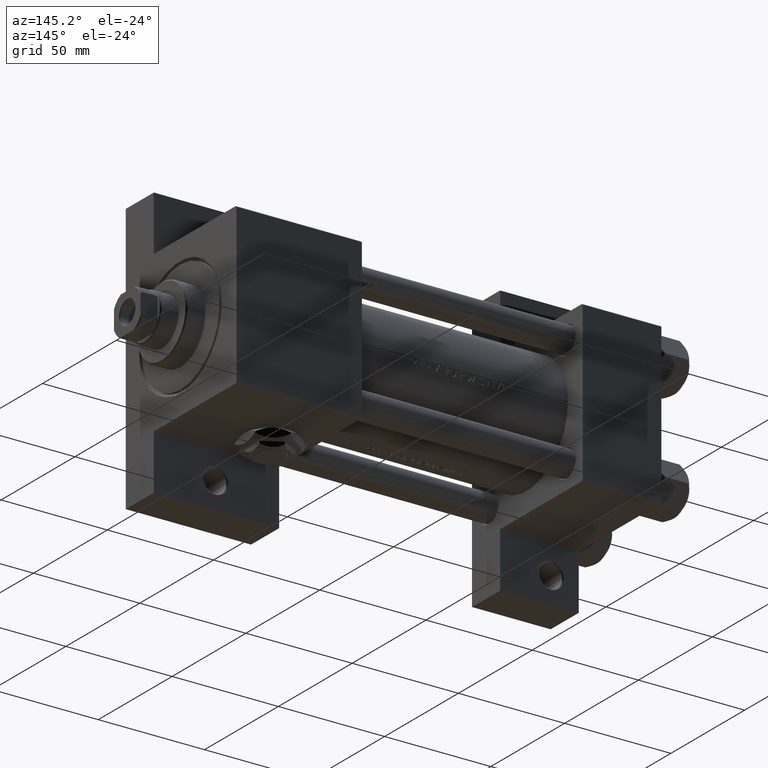
[diagram: clean part render]
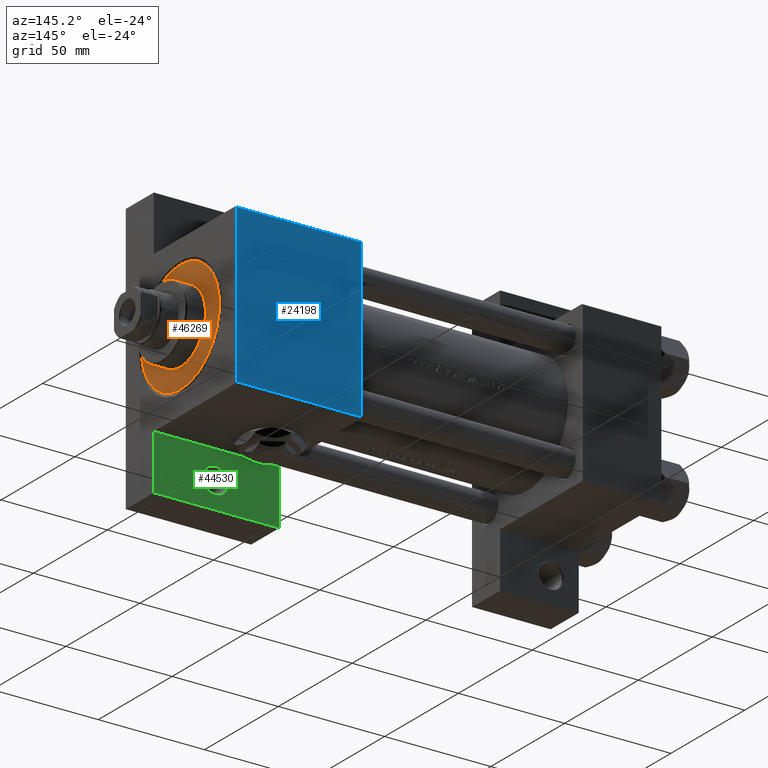
[diagram: same view with three faces highlighted in distinct colors, each labeled with its STEP entity id]
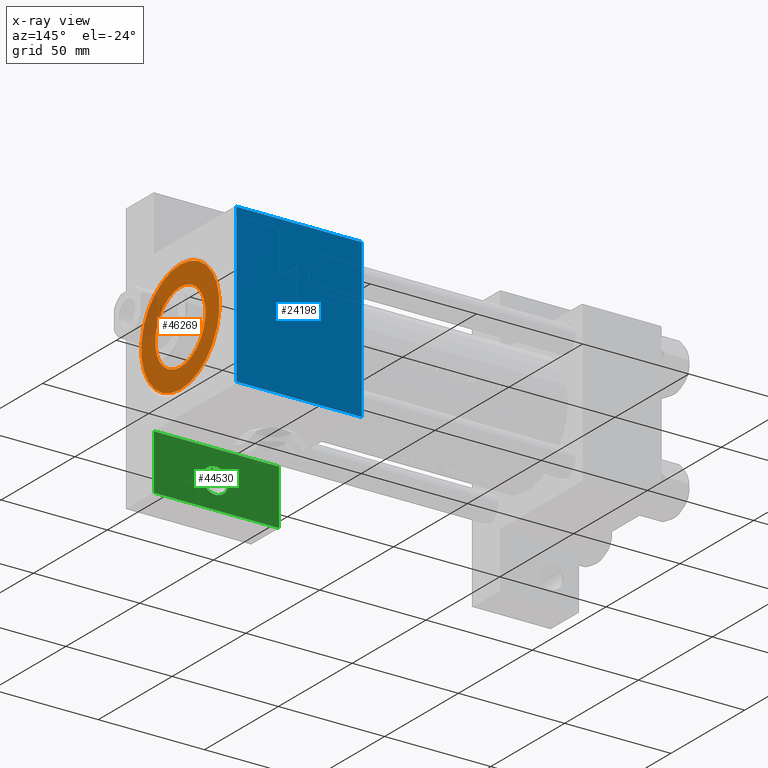
[diagram: x-ray of the same camera — body ghosted, the three highlighted faces saturated]
A machine part, auxiliary view with three faces highlighted in distinct colors.
The next image is the same camera in x-ray (body ghosted, the three faces saturated) — at least one of them is partly hidden behind the body in this view.
Their STEP definitions:

[orange] entity #46269 — the highlighted planar face has unit normal (1, 0, 0).
#2317 = CARTESIAN_POINT ( 'NONE',  ( -26.50000000000000355, 0.000000000000000000, 28.69999999999999929 ) ) ;
#2526 = ORIENTED_EDGE ( 'NONE', *, *, #10223, .T. ) ;
#3452 = AXIS2_PLACEMENT_3D ( 'NONE', #15663, #23867, #27587 ) ;
#4471 = PLANE ( 'NONE',  #11733 ) ;
#4754 = VERTEX_POINT ( 'NONE', #22784 ) ;
#5736 = CARTESIAN_POINT ( 'NONE',  ( 0.000000000000000000, 0.000000000000000000, 28.69999999999999929 ) ) ;
#5846 = CARTESIAN_POINT ( 'NONE',  ( 0.000000000000000000, 0.000000000000000000, 28.69999999999999929 ) ) ;
#7546 = CARTESIAN_POINT ( 'NONE',  ( 26.50000000000000355, 3.245314017740486554E-15, 28.69999999999999929 ) ) ;
#8373 = EDGE_CURVE ( 'NONE', #26002, #29425, #14264, .T. ) ;
#8695 = DIRECTION ( 'NONE',  ( 0.000000000000000000, 0.000000000000000000, 1.000000000000000000 ) ) ;
#9774 = EDGE_LOOP ( 'NONE', ( #12575, #37375 ) ) ;
#10223 = EDGE_CURVE ( 'NONE', #29425, #26002, #28536, .T. ) ;
#11733 = AXIS2_PLACEMENT_3D ( 'NONE', #23872, #8695, #31835 ) ;
#11836 = AXIS2_PLACEMENT_3D ( 'NONE', #5736, #44298, #25375 ) ;
#12138 = DIRECTION ( 'NONE',  ( 0.000000000000000000, 0.000000000000000000, 1.000000000000000000 ) ) ;
#12575 = ORIENTED_EDGE ( 'NONE', *, *, #22007, .F. ) ;
#13151 = FACE_OUTER_BOUND ( 'NONE', #44524, .T. ) ;
#13792 = CIRCLE ( 'NONE', #3452, 17.00000000000000000 ) ;
#13798 = DIRECTION ( 'NONE',  ( 0.000000000000000000, 0.000000000000000000, 1.000000000000000000 ) ) ;
#14264 = CIRCLE ( 'NONE', #26967, 26.50000000000000355 ) ;
#15663 = CARTESIAN_POINT ( 'NONE',  ( 0.000000000000000000, 0.000000000000000000, 28.69999999999999929 ) ) ;
#17854 = CARTESIAN_POINT ( 'NONE',  ( 17.00000000000000000, 2.081899558550500280E-15, 28.69999999999999929 ) ) ;
#18341 = ORIENTED_EDGE ( 'NONE', *, *, #8373, .T. ) ;
#21067 = CIRCLE ( 'NONE', #48880, 17.00000000000000000 ) ;
#22007 = EDGE_CURVE ( 'NONE', #4754, #42181, #13792, .T. ) ;
#22614 = DIRECTION ( 'NONE',  ( 1.000000000000000000, 0.000000000000000000, 0.000000000000000000 ) ) ;
#22784 = CARTESIAN_POINT ( 'NONE',  ( -17.00000000000000000, 0.000000000000000000, 28.69999999999999929 ) ) ;
#23867 = DIRECTION ( 'NONE',  ( 0.000000000000000000, 0.000000000000000000, 1.000000000000000000 ) ) ;
#23872 = CARTESIAN_POINT ( 'NONE',  ( 0.000000000000000000, 0.000000000000000000, 28.69999999999999929 ) ) ;
#24343 = EDGE_CURVE ( 'NONE', #42181, #4754, #21067, .T. ) ;
#25375 = DIRECTION ( 'NONE',  ( 1.000000000000000000, 0.000000000000000000, 0.000000000000000000 ) ) ;
#26002 = VERTEX_POINT ( 'NONE', #7546 ) ;
#26967 = AXIS2_PLACEMENT_3D ( 'NONE', #45500, #12138, #22614 ) ;
#27587 = DIRECTION ( 'NONE',  ( 1.000000000000000000, 0.000000000000000000, 0.000000000000000000 ) ) ;
#28536 = CIRCLE ( 'NONE', #11836, 26.50000000000000355 ) ;
#29425 = VERTEX_POINT ( 'NONE', #2317 ) ;
#31835 = DIRECTION ( 'NONE',  ( 1.000000000000000000, 0.000000000000000000, -0.000000000000000000 ) ) ;
#37375 = ORIENTED_EDGE ( 'NONE', *, *, #24343, .F. ) ;
#42181 = VERTEX_POINT ( 'NONE', #17854 ) ;
#44298 = DIRECTION ( 'NONE',  ( 0.000000000000000000, 0.000000000000000000, 1.000000000000000000 ) ) ;
#44524 = EDGE_LOOP ( 'NONE', ( #2526, #18341 ) ) ;
#45500 = CARTESIAN_POINT ( 'NONE',  ( 0.000000000000000000, 0.000000000000000000, 28.69999999999999929 ) ) ;
#46269 = ADVANCED_FACE ( 'NONE', ( #46275, #13151 ), #4471, .T. ) ;
#46275 = FACE_BOUND ( 'NONE', #9774, .T. ) ;
#47889 = DIRECTION ( 'NONE',  ( 1.000000000000000000, 0.000000000000000000, 0.000000000000000000 ) ) ;
#48880 = AXIS2_PLACEMENT_3D ( 'NONE', #5846, #13798, #47889 ) ;

[blue] entity #24198 — the highlighted planar face has unit normal (0, -1, -0).
#366 = DIRECTION ( 'NONE',  ( 0.000000000000000000, -1.000000000000000000, -1.850371707708594316E-16 ) ) ;
#950 = VECTOR ( 'NONE', #14532, 1000.000000000000000 ) ;
#1744 = DIRECTION ( 'NONE',  ( 1.000000000000000000, 0.000000000000000000, 0.000000000000000000 ) ) ;
#3015 = VERTEX_POINT ( 'NONE', #15783 ) ;
#4768 = CARTESIAN_POINT ( 'NONE',  ( 199.9999999999999716, -37.00000000000000000, 37.49999999999997868 ) ) ;
#5255 = LINE ( 'NONE', #4768, #49008 ) ;
#5510 = CARTESIAN_POINT ( 'NONE',  ( 199.9999999999999716, -37.00000000000000000, 37.49999999999997868 ) ) ;
#6945 = ORIENTED_EDGE ( 'NONE', *, *, #21399, .T. ) ;
#7356 = ORIENTED_EDGE ( 'NONE', *, *, #19989, .T. ) ;
#8794 = DIRECTION ( 'NONE',  ( -1.000000000000000000, 0.000000000000000000, 0.000000000000000000 ) ) ;
#9668 = CARTESIAN_POINT ( 'NONE',  ( 141.0000000000000000, 37.00000000000000000, 37.49999999999999289 ) ) ;
#12278 = LINE ( 'NONE', #16266, #19340 ) ;
#12806 = FACE_OUTER_BOUND ( 'NONE', #25021, .T. ) ;
#14532 = DIRECTION ( 'NONE',  ( 0.000000000000000000, -1.000000000000000000, -1.850371707708594316E-16 ) ) ;
#14850 = LINE ( 'NONE', #41478, #29643 ) ;
#15018 = CARTESIAN_POINT ( 'NONE',  ( 199.9999999999999716, 37.50000000000000000, 37.49999999999999289 ) ) ;
#15783 = CARTESIAN_POINT ( 'NONE',  ( 141.0000000000000000, -37.00000000000000000, 37.49999999999997868 ) ) ;
#16266 = CARTESIAN_POINT ( 'NONE',  ( 141.0000000000000000, 37.00000000000000000, 37.49999999999999289 ) ) ;
#18108 = EDGE_CURVE ( 'NONE', #47925, #46799, #22252, .T. ) ;
#19340 = VECTOR ( 'NONE', #8794, 1000.000000000000000 ) ;
#19989 = EDGE_CURVE ( 'NONE', #28808, #3015, #14850, .T. ) ;
#21399 = EDGE_CURVE ( 'NONE', #47925, #28808, #12278, .T. ) ;
#21794 = CARTESIAN_POINT ( 'NONE',  ( 199.9999999999999716, 37.00000000000000000, 37.49999999999999289 ) ) ;
#22252 = LINE ( 'NONE', #15018, #950 ) ;
#24021 = DIRECTION ( 'NONE',  ( 0.000000000000000000, 1.850371707708594316E-16, -1.000000000000000000 ) ) ;
#24198 = ADVANCED_FACE ( 'NONE', ( #12806 ), #46903, .F. ) ;
#24255 = CARTESIAN_POINT ( 'NONE',  ( 199.9999999999999716, 37.50000000000000000, 37.49999999999999289 ) ) ;
#25021 = EDGE_LOOP ( 'NONE', ( #42728, #6945, #7356, #32084 ) ) ;
#28808 = VERTEX_POINT ( 'NONE', #9668 ) ;
#29643 = VECTOR ( 'NONE', #366, 1000.000000000000000 ) ;
#32084 = ORIENTED_EDGE ( 'NONE', *, *, #43977, .T. ) ;
#36988 = AXIS2_PLACEMENT_3D ( 'NONE', #24255, #24021, #39206 ) ;
#39206 = DIRECTION ( 'NONE',  ( 0.000000000000000000, 1.000000000000000000, 1.850371707708594316E-16 ) ) ;
#41478 = CARTESIAN_POINT ( 'NONE',  ( 141.0000000000000000, 37.50000000000000000, 37.49999999999999289 ) ) ;
#42728 = ORIENTED_EDGE ( 'NONE', *, *, #18108, .F. ) ;
#43977 = EDGE_CURVE ( 'NONE', #3015, #46799, #5255, .T. ) ;
#46799 = VERTEX_POINT ( 'NONE', #5510 ) ;
#46903 = PLANE ( 'NONE',  #36988 ) ;
#47925 = VERTEX_POINT ( 'NONE', #21794 ) ;
#49008 = VECTOR ( 'NONE', #1744, 1000.000000000000000 ) ;

[green] entity #44530 — the highlighted planar face has unit normal (0, 1, 0).
#293 = CARTESIAN_POINT ( 'NONE',  ( 200.0000000000000284, 63.50000000000000000, -18.50000000000000000 ) ) ;
#1236 = EDGE_CURVE ( 'NONE', #22747, #42542, #14055, .T. ) ;
#2086 = LINE ( 'NONE', #32721, #4324 ) ;
#2103 = AXIS2_PLACEMENT_3D ( 'NONE', #22326, #14602, #6659 ) ;
#2363 = DIRECTION ( 'NONE',  ( 0.000000000000000000, 0.000000000000000000, 1.000000000000000000 ) ) ;
#2609 = DIRECTION ( 'NONE',  ( 1.000000000000000000, 0.000000000000000000, -0.000000000000000000 ) ) ;
#4324 = VECTOR ( 'NONE', #32962, 1000.000000000000000 ) ;
#6307 = EDGE_LOOP ( 'NONE', ( #24836, #48312 ) ) ;
#6659 = DIRECTION ( 'NONE',  ( 1.000000000000000000, 0.000000000000000000, 0.000000000000000000 ) ) ;
#8961 = VERTEX_POINT ( 'NONE', #11524 ) ;
#9686 = CARTESIAN_POINT ( 'NONE',  ( 176.9995000000000971, 51.00000000000000000, -18.50000000000000000 ) ) ;
#11524 = CARTESIAN_POINT ( 'NONE',  ( 141.0000000000000000, 37.50000000000000000, -18.50000000000000355 ) ) ;
#12313 = VECTOR ( 'NONE', #30636, 1000.000000000000000 ) ;
#12440 = EDGE_LOOP ( 'NONE', ( #37905, #19630, #19377, #43378 ) ) ;
#12771 = CIRCLE ( 'NONE', #42979, 5.999500000000102418 ) ;
#13809 = CARTESIAN_POINT ( 'NONE',  ( 165.0004999999998745, 51.00000000000000000, -18.50000000000000000 ) ) ;
#14055 = CIRCLE ( 'NONE', #2103, 5.999500000000102418 ) ;
#14057 = PLANE ( 'NONE',  #22832 ) ;
#14602 = DIRECTION ( 'NONE',  ( -0.000000000000000000, -0.000000000000000000, -1.000000000000000000 ) ) ;
#18689 = VERTEX_POINT ( 'NONE', #47028 ) ;
#18876 = VECTOR ( 'NONE', #20014, 1000.000000000000000 ) ;
#19377 = ORIENTED_EDGE ( 'NONE', *, *, #45698, .F. ) ;
#19630 = ORIENTED_EDGE ( 'NONE', *, *, #45824, .F. ) ;
#19702 = LINE ( 'NONE', #45584, #24410 ) ;
#20014 = DIRECTION ( 'NONE',  ( -1.067522139062649685E-15, -1.000000000000000000, 0.000000000000000000 ) ) ;
#22200 = CARTESIAN_POINT ( 'NONE',  ( 141.0000000000000000, 63.49999999999997158, -18.50000000000000000 ) ) ;
#22326 = CARTESIAN_POINT ( 'NONE',  ( 170.9999999999999716, 51.00000000000000000, -18.50000000000000000 ) ) ;
#22747 = VERTEX_POINT ( 'NONE', #9686 ) ;
#22832 = AXIS2_PLACEMENT_3D ( 'NONE', #29235, #2363, #2609 ) ;
#23478 = DIRECTION ( 'NONE',  ( -0.000000000000000000, -0.000000000000000000, -1.000000000000000000 ) ) ;
#23725 = DIRECTION ( 'NONE',  ( 1.000000000000000000, 0.000000000000000000, 0.000000000000000000 ) ) ;
#24218 = LINE ( 'NONE', #43619, #18876 ) ;
#24410 = VECTOR ( 'NONE', #38619, 1000.000000000000000 ) ;
#24836 = ORIENTED_EDGE ( 'NONE', *, *, #1236, .T. ) ;
#25252 = FACE_OUTER_BOUND ( 'NONE', #12440, .T. ) ;
#25529 = EDGE_CURVE ( 'NONE', #42542, #22747, #12771, .T. ) ;
#27632 = VERTEX_POINT ( 'NONE', #293 ) ;
#29235 = CARTESIAN_POINT ( 'NONE',  ( 0.000000000000000000, 0.000000000000000000, -18.50000000000000000 ) ) ;
#30391 = LINE ( 'NONE', #22200, #12313 ) ;
#30636 = DIRECTION ( 'NONE',  ( 1.067522139062651657E-15, 1.000000000000000000, -0.000000000000000000 ) ) ;
#32721 = CARTESIAN_POINT ( 'NONE',  ( 141.0000000000000000, 63.49999999999997158, -18.50000000000000000 ) ) ;
#32962 = DIRECTION ( 'NONE',  ( 1.000000000000000000, 4.704334850106593822E-16, 0.000000000000000000 ) ) ;
#34445 = EDGE_CURVE ( 'NONE', #46475, #27632, #2086, .T. ) ;
#35789 = EDGE_CURVE ( 'NONE', #8961, #46475, #30391, .T. ) ;
#37905 = ORIENTED_EDGE ( 'NONE', *, *, #35789, .F. ) ;
#38619 = DIRECTION ( 'NONE',  ( -1.000000000000000000, 3.528251137579945613E-16, -0.000000000000000000 ) ) ;
#38757 = CARTESIAN_POINT ( 'NONE',  ( 141.0000000000000000, 63.49999999999997158, -18.50000000000000000 ) ) ;
#42382 = CARTESIAN_POINT ( 'NONE',  ( 170.9999999999999716, 51.00000000000000000, -18.50000000000000000 ) ) ;
#42542 = VERTEX_POINT ( 'NONE', #13809 ) ;
#42979 = AXIS2_PLACEMENT_3D ( 'NONE', #42382, #23478, #23725 ) ;
#43378 = ORIENTED_EDGE ( 'NONE', *, *, #34445, .F. ) ;
#43619 = CARTESIAN_POINT ( 'NONE',  ( 200.0000000000000284, 63.50000000000000000, -18.50000000000000000 ) ) ;
#44173 = FACE_BOUND ( 'NONE', #6307, .T. ) ;
#44530 = ADVANCED_FACE ( 'NONE', ( #44173, #25252 ), #14057, .T. ) ;
#45584 = CARTESIAN_POINT ( 'NONE',  ( 141.0000000000000000, 37.50000000000000000, -18.50000000000000000 ) ) ;
#45698 = EDGE_CURVE ( 'NONE', #27632, #18689, #24218, .T. ) ;
#45824 = EDGE_CURVE ( 'NONE', #18689, #8961, #19702, .T. ) ;
#46475 = VERTEX_POINT ( 'NONE', #38757 ) ;
#47028 = CARTESIAN_POINT ( 'NONE',  ( 200.0000000000000000, 37.49999999999997868, -18.50000000000000000 ) ) ;
#48312 = ORIENTED_EDGE ( 'NONE', *, *, #25529, .T. ) ;